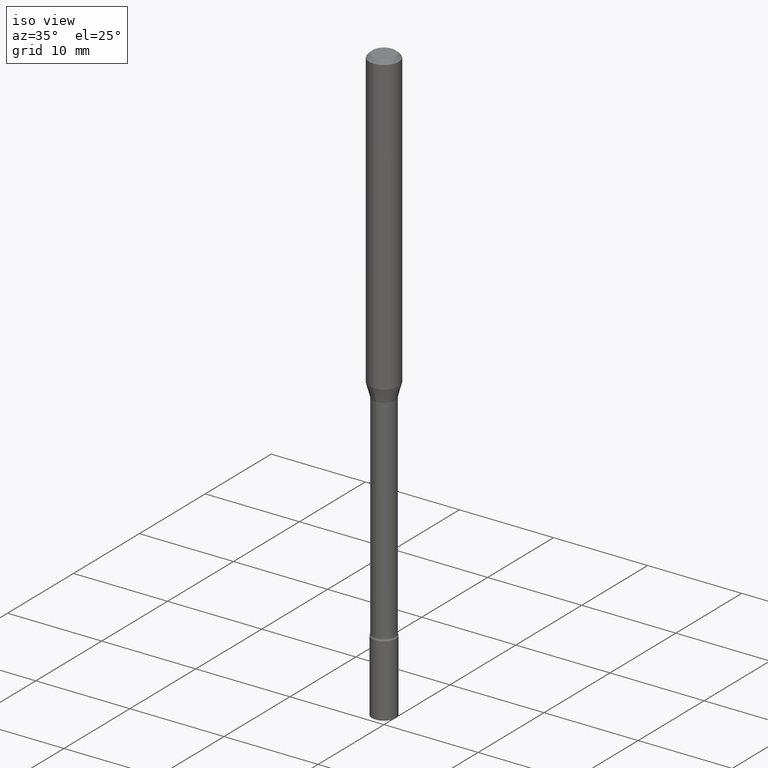
[diagram: clean part render]
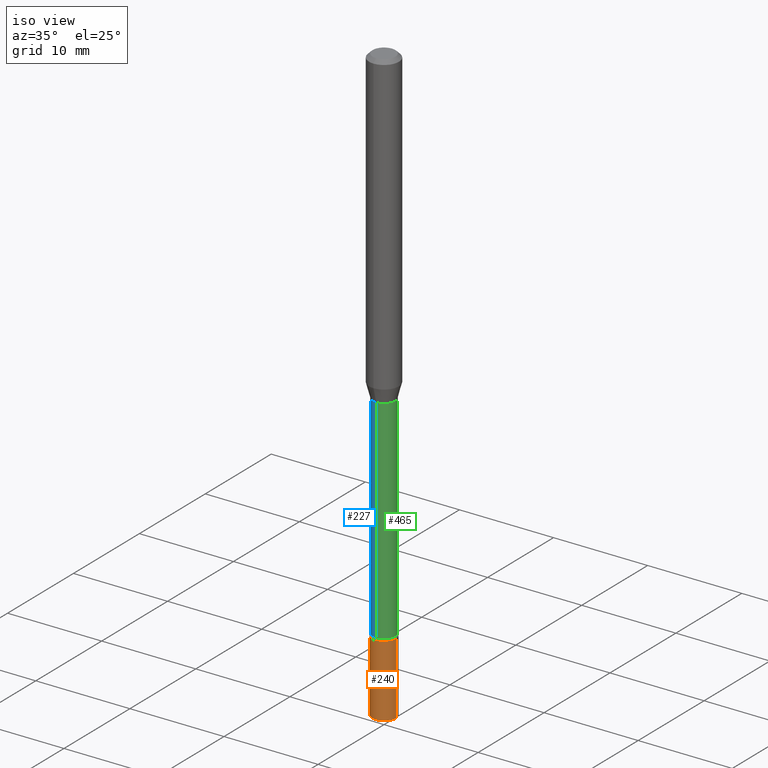
[diagram: same view with three faces highlighted in distinct colors, each labeled with its STEP entity id]
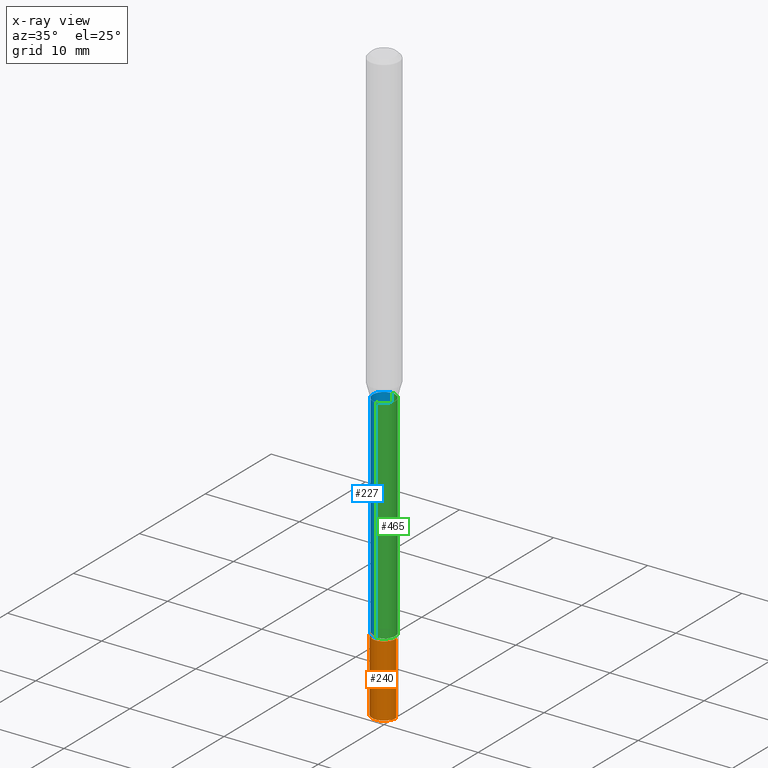
[diagram: x-ray of the same camera — body ghosted, the three highlighted faces saturated]
A machine part, iso view with three faces highlighted in distinct colors.
The next image is the same camera in x-ray (body ghosted, the three faces saturated) — at least one of them is partly hidden behind the body in this view.
Their STEP definitions:

[orange] entity #240 — the highlighted cylindrical surface (edge-blend (fillet) strip) has radius 1.27 mm, axis along (-0, 0, 1).
#7 = DIRECTION ( 'NONE',  ( -2.445468806185136877E-29, 3.491481338843145188E-15, 1.000000000000000000 ) ) ;
#29 = DIRECTION ( 'NONE',  ( -2.445468806185136597E-29, 3.491481338843145583E-15, 1.000000000000000000 ) ) ;
#38 = ORIENTED_EDGE ( 'NONE', *, *, #283, .F. ) ;
#39 = CARTESIAN_POINT ( 'NONE',  ( -0.05000000000000000278, -7.849709778401342953E-15, -2.200000000000000178 ) ) ;
#40 = ORIENTED_EDGE ( 'NONE', *, *, #106, .T. ) ;
#87 = CARTESIAN_POINT ( 'NONE',  ( 0.05000000000000000278, -3.491481338843133848E-16, 2.438088387897968247E-30 ) ) ;
#106 = EDGE_CURVE ( 'NONE', #463, #238, #456, .T. ) ;
#109 = CARTESIAN_POINT ( 'NONE',  ( 6.113672015462842613E-29, -8.728703347107864943E-15, -2.500000000000000000 ) ) ;
#116 = CARTESIAN_POINT ( 'NONE',  ( 5.380031373607300737E-29, -7.681258945454920203E-15, -2.200000000000000178 ) ) ;
#142 = DIRECTION ( 'NONE',  ( -2.445468806185136877E-29, 3.491481338843145188E-15, 1.000000000000000000 ) ) ;
#150 = AXIS2_PLACEMENT_3D ( 'NONE', #181, #29, #261 ) ;
#171 = ORIENTED_EDGE ( 'NONE', *, *, #427, .F. ) ;
#181 = CARTESIAN_POINT ( 'NONE',  ( 0.000000000000000000, 0.000000000000000000, 0.000000000000000000 ) ) ;
#191 = VECTOR ( 'NONE', #142, 39.37007874015748143 ) ;
#193 = DIRECTION ( 'NONE',  ( 1.000000000000000000, -6.982962677686274599E-15, 0.000000000000000000 ) ) ;
#231 = VECTOR ( 'NONE', #7, 39.37007874015748143 ) ;
#232 = CIRCLE ( 'NONE', #372, 0.05000000000000000278 ) ;
#238 = VERTEX_POINT ( 'NONE', #344 ) ;
#240 = ADVANCED_FACE ( 'NONE', ( #501 ), #383, .T. ) ;
#257 = EDGE_LOOP ( 'NONE', ( #38, #363, #40, #171 ) ) ;
#261 = DIRECTION ( 'NONE',  ( 1.000000000000000000, -6.982962677686267499E-15, 4.876176775795936353E-29 ) ) ;
#271 = CARTESIAN_POINT ( 'NONE',  ( 0.05000000000000000278, -9.077851480992178278E-15, -2.500000000000000000 ) ) ;
#280 = EDGE_CURVE ( 'NONE', #503, #463, #414, .T. ) ;
#283 = EDGE_CURVE ( 'NONE', #503, #388, #334, .T. ) ;
#334 = LINE ( 'NONE', #470, #191 ) ;
#344 = CARTESIAN_POINT ( 'NONE',  ( 0.05000000000000000278, -8.030407079339233538E-15, -2.200000000000000178 ) ) ;
#356 = CARTESIAN_POINT ( 'NONE',  ( -0.05000000000000000278, -7.849709778401342953E-15, -2.500000000000000000 ) ) ;
#363 = ORIENTED_EDGE ( 'NONE', *, *, #280, .T. ) ;
#372 = AXIS2_PLACEMENT_3D ( 'NONE', #116, #515, #193 ) ;
#375 = DIRECTION ( 'NONE',  ( -2.445468806185136597E-29, 3.491481338843145583E-15, 1.000000000000000000 ) ) ;
#383 = CYLINDRICAL_SURFACE ( 'NONE', #150, 0.05000000000000000278 ) ;
#388 = VERTEX_POINT ( 'NONE', #39 ) ;
#412 = DIRECTION ( 'NONE',  ( 1.000000000000000000, -6.982962677686274599E-15, 0.000000000000000000 ) ) ;
#414 = CIRCLE ( 'NONE', #431, 0.05000000000000000278 ) ;
#427 = EDGE_CURVE ( 'NONE', #388, #238, #232, .T. ) ;
#431 = AXIS2_PLACEMENT_3D ( 'NONE', #109, #375, #412 ) ;
#456 = LINE ( 'NONE', #87, #231 ) ;
#463 = VERTEX_POINT ( 'NONE', #271 ) ;
#470 = CARTESIAN_POINT ( 'NONE',  ( -0.05000000000000000278, 3.552713678800501127E-16, -2.459467545127453311E-30 ) ) ;
#501 = FACE_OUTER_BOUND ( 'NONE', #257, .T. ) ;
#503 = VERTEX_POINT ( 'NONE', #356 ) ;
#515 = DIRECTION ( 'NONE',  ( -2.445468806185136597E-29, 3.491481338843145583E-15, 1.000000000000000000 ) ) ;

[blue] entity #227 — the highlighted cylindrical surface (edge-blend (fillet) strip) has radius 1.1938 mm, axis along (-0, 0, 1).
#4 = CARTESIAN_POINT ( 'NONE',  ( 0.000000000000000000, 0.000000000000000000, 0.000000000000000000 ) ) ;
#20 = VERTEX_POINT ( 'NONE', #104 ) ;
#34 = AXIS2_PLACEMENT_3D ( 'NONE', #509, #66, #185 ) ;
#43 = CARTESIAN_POINT ( 'NONE',  ( 3.339550858073009772E-16, 0.04699999999999546207, -1.301974787463811678 ) ) ;
#66 = DIRECTION ( 'NONE',  ( -2.445545263393186245E-29, 3.491371847769544536E-15, 1.000000000000000000 ) ) ;
#72 = CARTESIAN_POINT ( 'NONE',  ( -3.281992458512017981E-16, -0.04700000000000777167, -2.190999999999999837 ) ) ;
#80 = VERTEX_POINT ( 'NONE', #72 ) ;
#93 = CARTESIAN_POINT ( 'NONE',  ( 3.446132268437026374E-16, 0.04699999999999247141, -2.191000000000000281 ) ) ;
#104 = CARTESIAN_POINT ( 'NONE',  ( -3.281992458512227029E-16, -0.04700000000000454509, -1.301974787463811012 ) ) ;
#115 = CARTESIAN_POINT ( 'NONE',  ( 5.358189672094472202E-29, -7.649595718463072827E-15, -2.191000000000000281 ) ) ;
#121 = ORIENTED_EDGE ( 'NONE', *, *, #297, .F. ) ;
#132 = VERTEX_POINT ( 'NONE', #43 ) ;
#144 = CIRCLE ( 'NONE', #225, 0.04700000000000012501 ) ;
#156 = DIRECTION ( 'NONE',  ( -2.445545263393186245E-29, 3.491371847769544536E-15, 1.000000000000000000 ) ) ;
#162 = DIRECTION ( 'NONE',  ( -2.445545263393186245E-29, 3.491371847769544536E-15, 1.000000000000000000 ) ) ;
#164 = LINE ( 'NONE', #314, #300 ) ;
#179 = ORIENTED_EDGE ( 'NONE', *, *, #183, .T. ) ;
#183 = EDGE_CURVE ( 'NONE', #80, #20, #164, .T. ) ;
#185 = DIRECTION ( 'NONE',  ( -6.982962677686265922E-15, -1.000000000000000000, 5.812442539711197800E-15 ) ) ;
#205 = VERTEX_POINT ( 'NONE', #93 ) ;
#225 = AXIS2_PLACEMENT_3D ( 'NONE', #115, #386, #475 ) ;
#227 = ADVANCED_FACE ( 'NONE', ( #245 ), #396, .T. ) ;
#241 = AXIS2_PLACEMENT_3D ( 'NONE', #4, #162, #488 ) ;
#245 = FACE_OUTER_BOUND ( 'NONE', #400, .T. ) ;
#297 = EDGE_CURVE ( 'NONE', #132, #20, #490, .T. ) ;
#300 = VECTOR ( 'NONE', #489, 39.37007874015748143 ) ;
#314 = CARTESIAN_POINT ( 'NONE',  ( -3.281992458512549969E-16, -0.04700000000000006256, 1.640944768451688084E-16 ) ) ;
#353 = EDGE_CURVE ( 'NONE', #205, #80, #144, .T. ) ;
#386 = DIRECTION ( 'NONE',  ( -2.445545263393186245E-29, 3.491371847769544536E-15, 1.000000000000000000 ) ) ;
#396 = CYLINDRICAL_SURFACE ( 'NONE', #241, 0.04700000000000006256 ) ;
#400 = EDGE_LOOP ( 'NONE', ( #406, #493, #179, #121 ) ) ;
#406 = ORIENTED_EDGE ( 'NONE', *, *, #511, .F. ) ;
#473 = VECTOR ( 'NONE', #156, 39.37007874015748143 ) ;
#475 = DIRECTION ( 'NONE',  ( -6.982962677686265133E-15, -1.000000000000000000, 5.812442539711182812E-15 ) ) ;
#478 = LINE ( 'NONE', #518, #473 ) ;
#488 = DIRECTION ( 'NONE',  ( -6.982962677686267499E-15, -1.000000000000000000, 3.491371847769544536E-15 ) ) ;
#489 = DIRECTION ( 'NONE',  ( -2.445545263393186245E-29, 3.491371847769544536E-15, 1.000000000000000000 ) ) ;
#490 = CIRCLE ( 'NONE', #34, 0.04700000000000000705 ) ;
#493 = ORIENTED_EDGE ( 'NONE', *, *, #353, .T. ) ;
#509 = CARTESIAN_POINT ( 'NONE',  ( 3.184038274539474343E-29, -4.545678119456887098E-15, -1.301974787463811456 ) ) ;
#511 = EDGE_CURVE ( 'NONE', #205, #132, #478, .T. ) ;
#518 = CARTESIAN_POINT ( 'NONE',  ( 3.339550858072474826E-16, 0.04700000000000006256, -1.640944768451688084E-16 ) ) ;

[green] entity #465 — the highlighted cylindrical surface (edge-blend (fillet) strip) has radius 1.1938 mm, axis along (-0, 0, 1).
#2 = EDGE_LOOP ( 'NONE', ( #352, #120, #276, #243 ) ) ;
#20 = VERTEX_POINT ( 'NONE', #104 ) ;
#32 = CARTESIAN_POINT ( 'NONE',  ( 0.000000000000000000, 0.000000000000000000, 0.000000000000000000 ) ) ;
#43 = CARTESIAN_POINT ( 'NONE',  ( 3.339550858073009772E-16, 0.04699999999999546207, -1.301974787463811678 ) ) ;
#72 = CARTESIAN_POINT ( 'NONE',  ( -3.281992458512017981E-16, -0.04700000000000777167, -2.190999999999999837 ) ) ;
#80 = VERTEX_POINT ( 'NONE', #72 ) ;
#88 = EDGE_CURVE ( 'NONE', #80, #205, #423, .T. ) ;
#93 = CARTESIAN_POINT ( 'NONE',  ( 3.446132268437026374E-16, 0.04699999999999247141, -2.191000000000000281 ) ) ;
#94 = CARTESIAN_POINT ( 'NONE',  ( 5.358189672094472202E-29, -7.649595718463072827E-15, -2.191000000000000281 ) ) ;
#104 = CARTESIAN_POINT ( 'NONE',  ( -3.281992458512227029E-16, -0.04700000000000454509, -1.301974787463811012 ) ) ;
#120 = ORIENTED_EDGE ( 'NONE', *, *, #511, .T. ) ;
#132 = VERTEX_POINT ( 'NONE', #43 ) ;
#153 = DIRECTION ( 'NONE',  ( -2.445545263393186245E-29, 3.491371847769544536E-15, 1.000000000000000000 ) ) ;
#156 = DIRECTION ( 'NONE',  ( -2.445545263393186245E-29, 3.491371847769544536E-15, 1.000000000000000000 ) ) ;
#163 = EDGE_CURVE ( 'NONE', #20, #132, #217, .T. ) ;
#164 = LINE ( 'NONE', #314, #300 ) ;
#183 = EDGE_CURVE ( 'NONE', #80, #20, #164, .T. ) ;
#205 = VERTEX_POINT ( 'NONE', #93 ) ;
#217 = CIRCLE ( 'NONE', #274, 0.04700000000000000705 ) ;
#236 = DIRECTION ( 'NONE',  ( -2.445545263393186245E-29, 3.491371847769544536E-15, 1.000000000000000000 ) ) ;
#243 = ORIENTED_EDGE ( 'NONE', *, *, #183, .F. ) ;
#274 = AXIS2_PLACEMENT_3D ( 'NONE', #329, #358, #397 ) ;
#276 = ORIENTED_EDGE ( 'NONE', *, *, #163, .F. ) ;
#300 = VECTOR ( 'NONE', #489, 39.37007874015748143 ) ;
#304 = CYLINDRICAL_SURFACE ( 'NONE', #425, 0.04700000000000006256 ) ;
#314 = CARTESIAN_POINT ( 'NONE',  ( -3.281992458512549969E-16, -0.04700000000000006256, 1.640944768451688084E-16 ) ) ;
#329 = CARTESIAN_POINT ( 'NONE',  ( 3.184038274539474343E-29, -4.545678119456887098E-15, -1.301974787463811456 ) ) ;
#348 = AXIS2_PLACEMENT_3D ( 'NONE', #94, #236, #483 ) ;
#352 = ORIENTED_EDGE ( 'NONE', *, *, #88, .T. ) ;
#358 = DIRECTION ( 'NONE',  ( -2.445545263393186245E-29, 3.491371847769544536E-15, 1.000000000000000000 ) ) ;
#384 = DIRECTION ( 'NONE',  ( -6.982962677686267499E-15, -1.000000000000000000, 3.491371847769544536E-15 ) ) ;
#387 = FACE_OUTER_BOUND ( 'NONE', #2, .T. ) ;
#397 = DIRECTION ( 'NONE',  ( -6.982962677686265922E-15, -1.000000000000000000, 5.812442539711197800E-15 ) ) ;
#423 = CIRCLE ( 'NONE', #348, 0.04700000000000012501 ) ;
#425 = AXIS2_PLACEMENT_3D ( 'NONE', #32, #153, #384 ) ;
#465 = ADVANCED_FACE ( 'NONE', ( #387 ), #304, .T. ) ;
#473 = VECTOR ( 'NONE', #156, 39.37007874015748143 ) ;
#478 = LINE ( 'NONE', #518, #473 ) ;
#483 = DIRECTION ( 'NONE',  ( -6.982962677686265133E-15, -1.000000000000000000, 5.812442539711182812E-15 ) ) ;
#489 = DIRECTION ( 'NONE',  ( -2.445545263393186245E-29, 3.491371847769544536E-15, 1.000000000000000000 ) ) ;
#511 = EDGE_CURVE ( 'NONE', #205, #132, #478, .T. ) ;
#518 = CARTESIAN_POINT ( 'NONE',  ( 3.339550858072474826E-16, 0.04700000000000006256, -1.640944768451688084E-16 ) ) ;